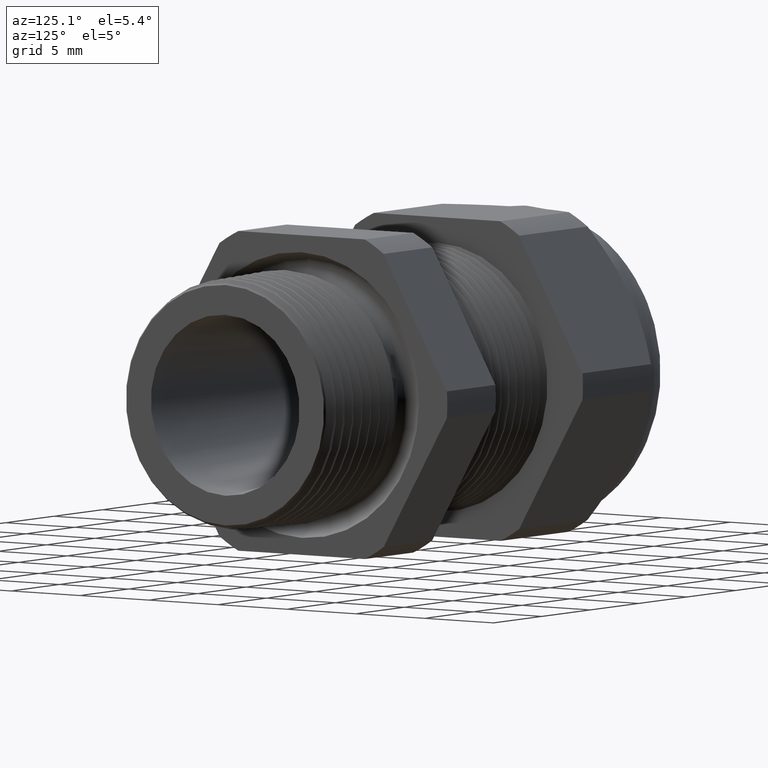
[diagram: clean part render]
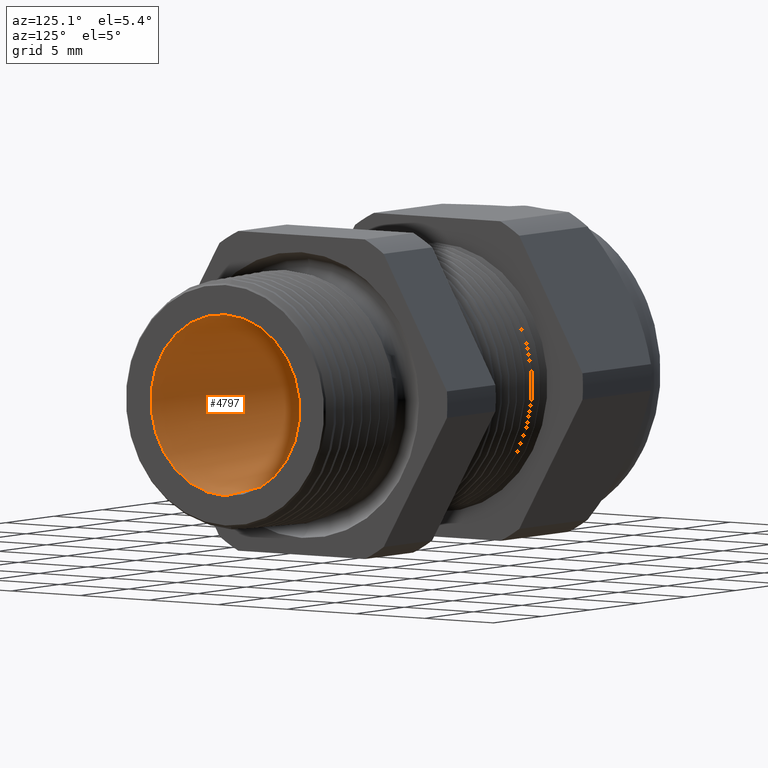
[diagram: same view with one face highlighted and labeled with its STEP entity id]
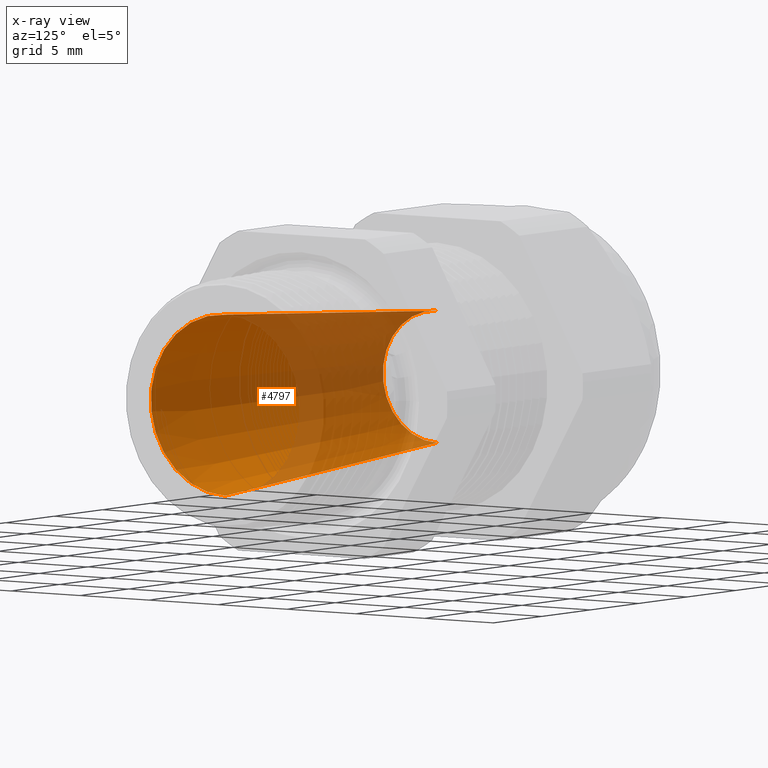
[diagram: x-ray of the same camera — body ghosted, the highlighted face saturated]
A machine part, auxiliary view. The second image highlights one B-rep face of the part: STEP entity #4797.
The next image is the same camera in x-ray: the body ghosted, the highlighted face saturated — about 45% of this face is hidden behind the body in this view.
In plain terms, the highlighted conical surface has half-angle 3.818 deg.
Its self-contained STEP definition (entity closure, byte-faithful):
#2367 = DIRECTION ( 'NONE',  ( 0.9977800507276000100, 0.0000000000000000000, -0.06659557320143644200 ) ) ;
#3801 = CARTESIAN_POINT ( 'NONE',  ( -0.8608661417322833700, 0.0000000000000000000, -0.1550000000000000000 ) ) ;
#3806 = CARTESIAN_POINT ( 'NONE',  ( -0.8608661417322833700, 2.250027807345431400E-017, 0.1550000000000000000 ) ) ;
#3825 = DIRECTION ( 'NONE',  ( 0.9977800507276000100, 8.155605555852239100E-018, 0.06659557320143644200 ) ) ;
#3826 = VECTOR ( 'NONE', #3825, 39.37007874015748100 ) ;
#3827 = CARTESIAN_POINT ( 'NONE',  ( -0.8608661417322833700, 1.898202538678397300E-017, 0.1550000000000000000 ) ) ;
#3828 = LINE ( 'NONE', #3827, #3826 ) ;
#3829 = CARTESIAN_POINT ( 'NONE',  ( 4.443791160244338600E-018, 0.0000000000000000000, -0.2124574267310359600 ) ) ;
#3835 = CARTESIAN_POINT ( 'NONE',  ( 4.443791160244338600E-018, 2.601853076012465100E-017, 0.2124574267310359600 ) ) ;
#3854 = DIRECTION ( 'NONE',  ( 0.0000000000000000000, 0.0000000000000000000, -1.000000000000000000 ) ) ;
#3855 = DIRECTION ( 'NONE',  ( 1.000000000000000000, 0.0000000000000000000, 0.0000000000000000000 ) ) ;
#3856 = CARTESIAN_POINT ( 'NONE',  ( 4.443791160244338600E-018, 0.0000000000000000000, 0.0000000000000000000 ) ) ;
#3857 = AXIS2_PLACEMENT_3D ( 'NONE', #3856, #3855, #3854 ) ;
#3858 = CIRCLE ( 'NONE', #3857, 0.2124574267310359600 ) ;
#3873 = VECTOR ( 'NONE', #2367, 39.37007874015748100 ) ;
#3874 = CARTESIAN_POINT ( 'NONE',  ( -0.8608661417322833700, 0.0000000000000000000, -0.1550000000000000000 ) ) ;
#3878 = LINE ( 'NONE', #3874, #3873 ) ;
#3881 = DIRECTION ( 'NONE',  ( 0.0000000000000000000, 0.0000000000000000000, -1.000000000000000000 ) ) ;
#3882 = DIRECTION ( 'NONE',  ( 1.000000000000000000, 0.0000000000000000000, 0.0000000000000000000 ) ) ;
#3883 = CARTESIAN_POINT ( 'NONE',  ( -0.8608661417322833700, 0.0000000000000000000, 0.0000000000000000000 ) ) ;
#3884 = AXIS2_PLACEMENT_3D ( 'NONE', #3883, #3882, #3881 ) ;
#3886 = CONICAL_SURFACE ( 'NONE', #3884, 0.1550000000000000000, 0.06664489660048481000 ) ;
#3887 = FACE_OUTER_BOUND ( 'NONE', #4796, .T. ) ;
#3888 = DIRECTION ( 'NONE',  ( 0.0000000000000000000, 0.0000000000000000000, -1.000000000000000000 ) ) ;
#3889 = DIRECTION ( 'NONE',  ( 1.000000000000000000, 0.0000000000000000000, 0.0000000000000000000 ) ) ;
#3890 = CARTESIAN_POINT ( 'NONE',  ( -0.8608661417322833700, 0.0000000000000000000, 0.0000000000000000000 ) ) ;
#3891 = AXIS2_PLACEMENT_3D ( 'NONE', #3890, #3889, #3888 ) ;
#3892 = CIRCLE ( 'NONE', #3891, 0.1550000000000000000 ) ;
#4740 = VERTEX_POINT ( 'NONE', #3806 ) ;
#4743 = VERTEX_POINT ( 'NONE', #3801 ) ;
#4758 = VERTEX_POINT ( 'NONE', #3835 ) ;
#4761 = ORIENTED_EDGE ( 'NONE', *, *, #4765, .T. ) ;
#4763 = ORIENTED_EDGE ( 'NONE', *, *, #4780, .T. ) ;
#4764 = VERTEX_POINT ( 'NONE', #3829 ) ;
#4765 = EDGE_CURVE ( 'NONE', #4740, #4758, #3828, .T. ) ;
#4780 = EDGE_CURVE ( 'NONE', #4758, #4764, #3858, .T. ) ;
#4781 = ORIENTED_EDGE ( 'NONE', *, *, #4794, .F. ) ;
#4794 = EDGE_CURVE ( 'NONE', #4740, #4743, #3892, .T. ) ;
#4796 = EDGE_LOOP ( 'NONE', ( #4781, #4761, #4763, #4810 ) ) ;
#4797 = ADVANCED_FACE ( 'NONE', ( #3887 ), #3886, .F. ) ;
#4802 = EDGE_CURVE ( 'NONE', #4743, #4764, #3878, .T. ) ;
#4810 = ORIENTED_EDGE ( 'NONE', *, *, #4802, .F. ) ;